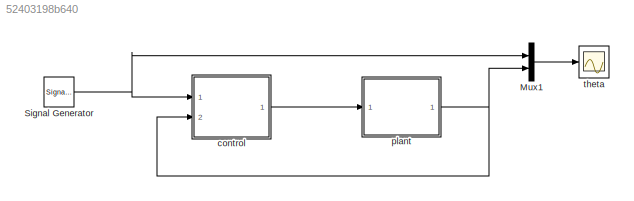
MODEL slx_52403198b640
KIND model
CONFIG InitFcn = param
BLOCK [Mux] Mux1
  DisplayOption = bar
  Inputs = 2
  Ports = [2, 1]
BLOCK [SignalGenerator] Signal Generator
  Amplitude = 2
  Ports = [0, 1]
  Units = rad/sec
  WaveForm = square
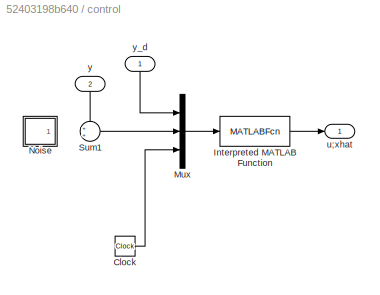
BLOCK [SubSystem] control
  FunctionWithSeparateData = off
  MaskHideContents = off
  MinAlgLoopOccurrences = off
  Opaque = off
  Ports = [2, 1]
  PropExecContextOutsideSubsystem = off
  RTWSystemCode = Auto
  RequestExecContextInheritance = off
BLOCK [Clock] control/Clock
BLOCK [MATLABFcn] control/Interpreted MATLAB Function
  MATLABFcn = can_ctrl(u,P)
  OutputDimensions = 1+2
  Ports = [1, 1]
  SampleTime = P.Ts
BLOCK [Mux] control/Mux
  DisplayOption = bar
  Inputs = 3
  Ports = [3, 1]
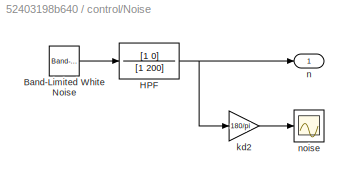
BLOCK [SubSystem] control/Noise
  FunctionWithSeparateData = off
  MaskHideContents = off
  MinAlgLoopOccurrences = off
  Opaque = off
  Ports = [0, 1]
  PropExecContextOutsideSubsystem = off
  RTWSystemCode = Auto
  RequestExecContextInheritance = off
BLOCK [Reference] control/Noise/Band-Limited White Noise  REF=simulink/Sources/Band-Limited
White Noise
  Cov = [0.0001]
  Ports = [0, 1]
  SourceBlock = simulink/Sources/Band-Limited\nWhite Noise
  SourceType = Band-Limited White Noise.
  Ts = P.Ts
  VectorParams1D = on
  seed = [23341]
BLOCK [TransferFcn] control/Noise/HPF
  Denominator = [1 200]
  Numerator = [1 0]
BLOCK [Gain] control/Noise/kd2
  Gain = 180/pi
  OutDataTypeStr = Inherit: Inherit via internal rule
  ParamDataTypeStr = Inherit: Inherit via internal rule
  SaturateOnIntegerOverflow = off
BLOCK [Outport] control/Noise/n
  IconDisplay = Port number
BLOCK [Scope] control/Noise/noise
  DataFormat = StructureWithTime
  Floating = off
  LimitDataPoints = off
  NumInputPorts = 1
  Ports = [1]
  SampleTime = 0
  SaveName = ScopeData2
  ShowLegends = off
  YMax = 8
  YMin = -7
BLOCK [Sum] control/Sum1
  IconShape = round
  InputSameDT = off
  Inputs = ++|
  OutDataTypeStr = Inherit: Inherit via internal rule
  Ports = [2, 1]
  SaturateOnIntegerOverflow = off
BLOCK [Outport] control/u;xhat
  IconDisplay = Port number
BLOCK [Inport] control/y
  IconDisplay = Port number
  Port = 2
BLOCK [Inport] control/y_d
  IconDisplay = Port number
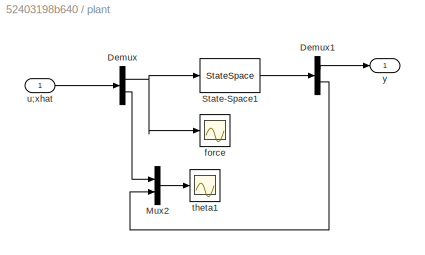
BLOCK [SubSystem] plant
  FunctionWithSeparateData = off
  MaskHideContents = off
  MinAlgLoopOccurrences = off
  Opaque = off
  Ports = [1, 1]
  PropExecContextOutsideSubsystem = off
  RTWSystemCode = Auto
  RequestExecContextInheritance = off
BLOCK [Demux] plant/Demux
  DisplayOption = bar
  Outputs = 2
  Ports = [1, 2]
BLOCK [Demux] plant/Demux1
  DisplayOption = bar
  Outputs = 2
  Ports = [1, 2]
BLOCK [Mux] plant/Mux2
  DisplayOption = bar
  Inputs = 2
  Ports = [2, 1]
BLOCK [StateSpace] plant/State-Space1
  A = P.A
  B = P.B
  C = [P.C; eye(2)]
  D = [P.D; 0; 0]
  Ports = [1, 1]
  X0 = [0;0]
BLOCK [Scope] plant/force
  DataFormat = StructureWithTime
  Floating = off
  NumInputPorts = 1
  Ports = [1]
  SampleTime = 0
  SaveName = ScopeData3
  ShowLegends = off
BLOCK [Scope] plant/theta1
  DataFormat = StructureWithTime
  Floating = off
  NumInputPorts = 1
  Ports = [1]
  SampleTime = 0
  SaveName = ScopeData1
  ShowLegends = off
BLOCK [Inport] plant/u;xhat
  IconDisplay = Port number
BLOCK [Outport] plant/y
  IconDisplay = Port number
BLOCK [Scope] theta
  DataFormat = StructureWithTime
  Floating = off
  NumInputPorts = 1
  Ports = [1]
  SampleTime = 0
  ShowLegends = off
  YMax = 10
  YMin = -80
LINE Mux1:1 -> theta:1
NET Signal Generator:1 -> Mux1:1, control:1
LINE control/Clock:1 -> control/Mux:3
LINE control/Interpreted MATLAB Function:1 -> control/u;xhat:1
LINE control/Mux:1 -> control/Interpreted MATLAB Function:1
LINE control/Noise/Band-Limited White Noise:1 -> control/Noise/HPF:1
NET control/Noise/HPF:1 -> control/Noise/kd2:1, control/Noise/n:1
LINE control/Noise/kd2:1 -> control/Noise/noise:1
LINE control/Sum1:1 -> control/Mux:2
LINE control/y:1 -> control/Sum1:1
LINE control/y_d:1 -> control/Mux:1
LINE control:1 -> plant:1
LINE plant/Demux1:1 -> plant/y:1
LINE plant/Demux1:2 -> plant/Mux2:2
NET plant/Demux:1 -> plant/State-Space1:1, plant/force:1
LINE plant/Demux:2 -> plant/Mux2:1
LINE plant/Mux2:1 -> plant/theta1:1
LINE plant/State-Space1:1 -> plant/Demux1:1
LINE plant/u;xhat:1 -> plant/Demux:1
NET plant:1 -> Mux1:2, control:2
note: NET lines group one-source signal fan-out (src -> all destinations, sorted); 1:1 wires keep LINE
